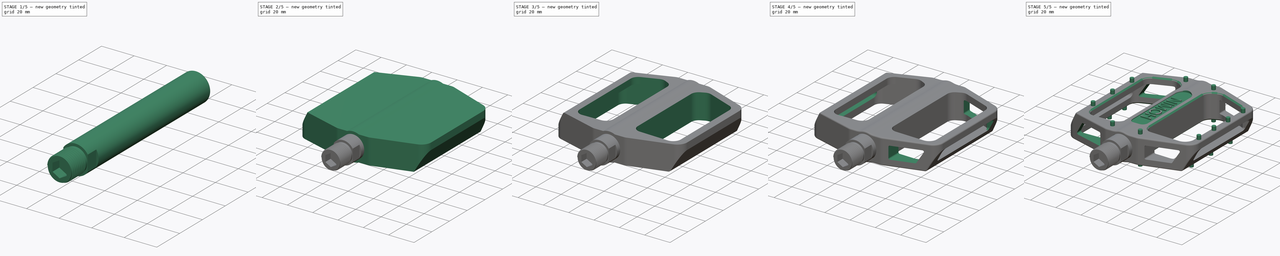
[diagram: build sequence overview — one tinted view per stage of 5, left to right]
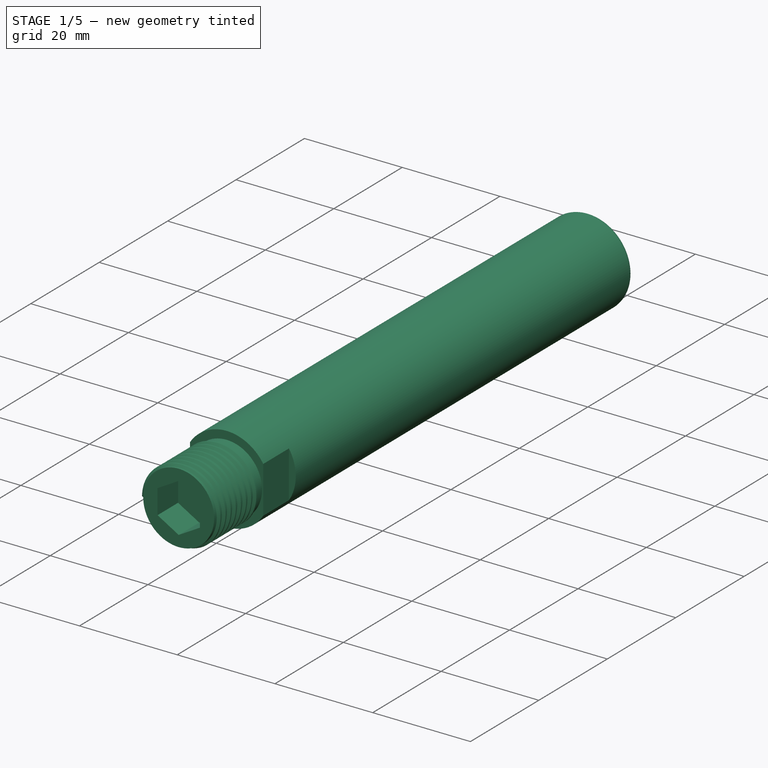
[diagram: stage 1 of 5 — iso view after this stage's code; geometry added in this stage tinted green]
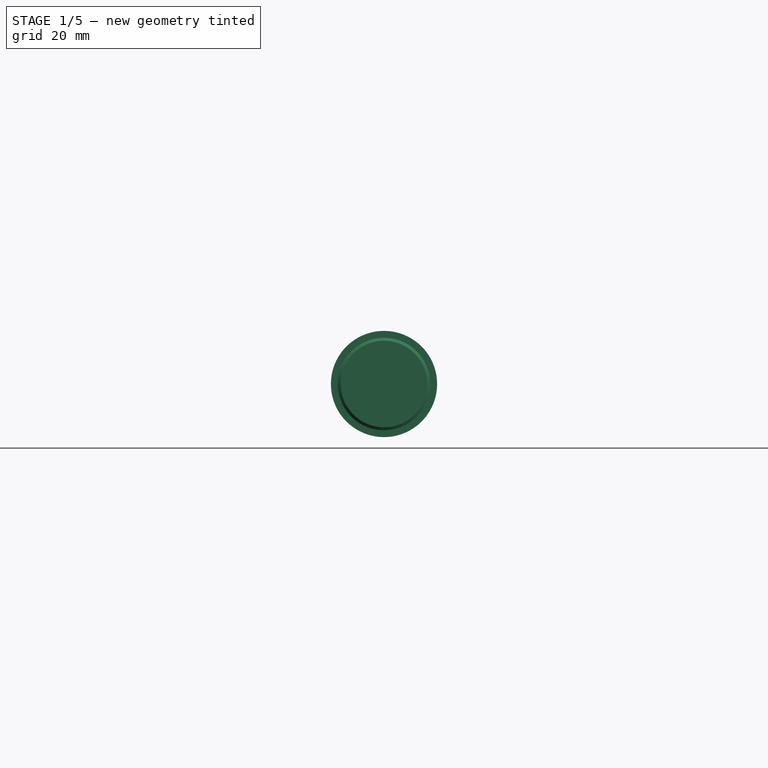
[diagram: stage 1 of 5 — front view after this stage's code; geometry added in this stage tinted green]
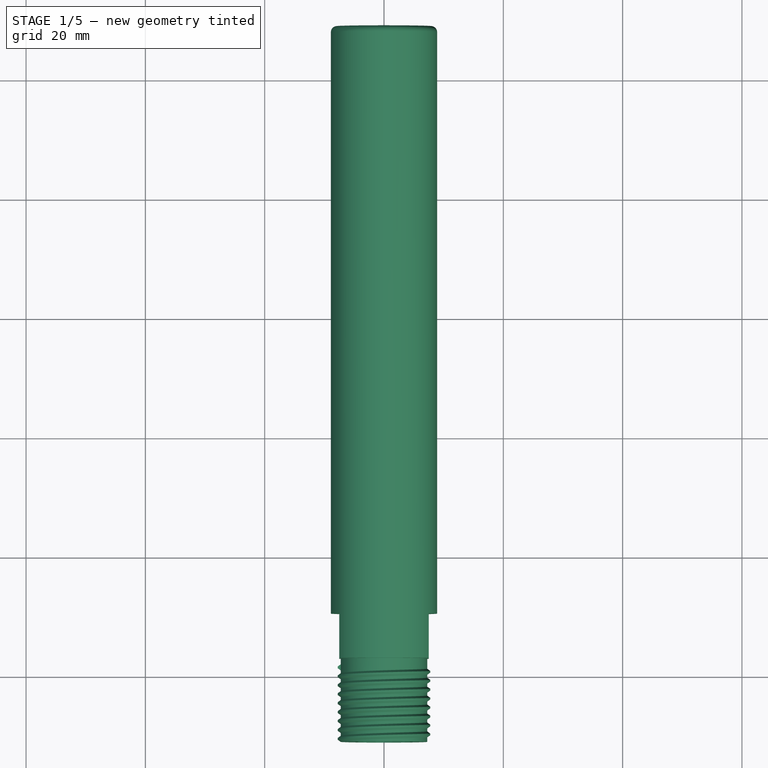
[diagram: stage 1 of 5 — top view after this stage's code; geometry added in this stage tinted green]
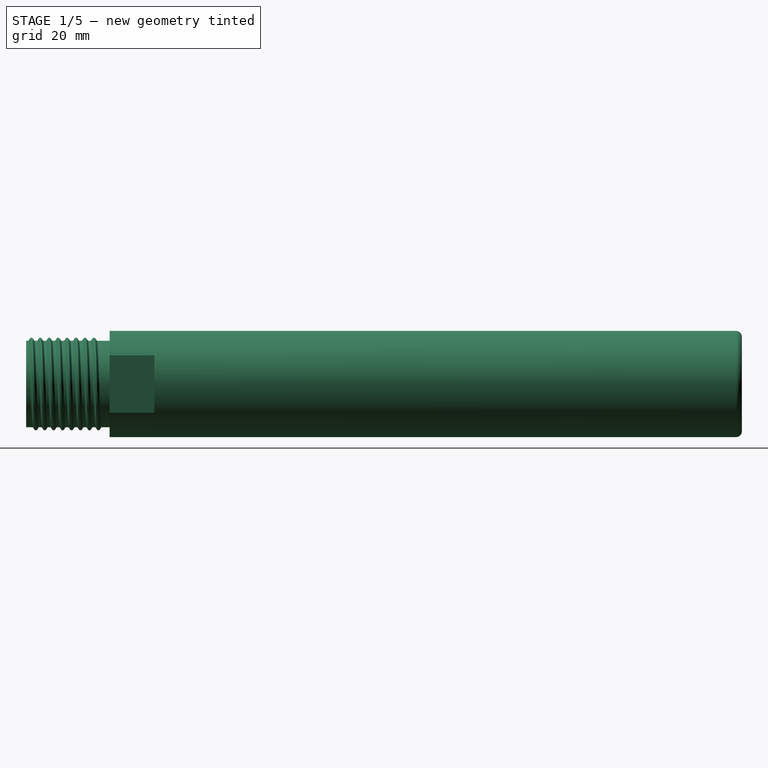
[diagram: stage 1 of 5 — right view after this stage's code; geometry added in this stage tinted green]
FCSTD DOCUMENT  (FreeCAD 1.0R39109 (Git))
Label: nimohscage
License: All rights reserved
LicenseURL: https://en.wikipedia.org/wiki/All_rights_reserved
objects: Sketcher::SketchObject×13, PartDesign::Pocket×8, PartDesign::Fillet×7, PartDesign::PolarPattern×5, PartDesign::Pad×4, PartDesign::Mirrored×2, PartDesign::Body×2, PartDesign::Chamfer×1, Part::Part2DObjectPython×1, PartDesign::Revolution×1, PartDesign::AdditiveHelix×1
note: 109 computed .brp shape members not serialized (recipe doc carries the construction recipe); baked Part::Feature solids carry a one-line shape summary decoded from their .brp

FEATURE [PartDesign::Body] Body  label="CAGE"
  AllowCompound = false
  Group = -> [Sketch,Pad,Fillet,Mirrored,Sketch001,Pocket,PolarPattern,Sketch002,Pad001,Sketch003,Pocket001,Sketch004,Pocket002,Fillet001,PolarPattern001,Fillet002,Fillet003,Fillet004,Sketch005,Pocket003,PolarPattern002,Sketch006,Pocket004,Fillet005,PolarPattern003,Chamfer,Sketch007,Pocket005,ShapeString,Pad002,Sketch008,Pad003,PolarPattern004]
  Origin = -> Origin
  Tip = -> PolarPattern004
FEATURE [Sketcher::SketchObject] Sketch009
  ArcFitTolerance = 1e-06
  AttachmentSupport = -> [XY_Plane001]
  FullyConstrained = true
  MakeInternals = false
  MapMode = 5
  sketch-geometry (7):
    g0: LineSegment StartX=0 StartY=0 StartZ=0 EndX=0 EndY=49 EndZ=0
    g1: LineSegment StartX=0 StartY=49 StartZ=0 EndX=-8.9 EndY=49 EndZ=0
    g2: LineSegment StartX=-8.9 StartY=49 StartZ=0 EndX=-8.9 EndY=-57 EndZ=0
    g3: LineSegment StartX=-8.9 StartY=-57 StartZ=0 EndX=-7.25 EndY=-57 EndZ=0
    g4: LineSegment StartX=-7.25 StartY=-57 StartZ=0 EndX=-7.25 EndY=-71 EndZ=0
    g5: LineSegment StartX=-7.25 StartY=-71 StartZ=0 EndX=0 EndY=-71 EndZ=0
    g6: LineSegment StartX=0 StartY=-71 StartZ=0 EndX=0 EndY=0 EndZ=0
  constraints (20):
    c: Coincident(g-1,g0)
    c: PointOnObject(g0,g-2)
    c: Coincident(g0,g1)
    c: Horizontal(g1)
    c: Coincident(g1,g2)
    c: Vertical(g2)
    c: Coincident(g2,g3)
    c: Horizontal(g3)
    c: Coincident(g3,g4)
    c: Vertical(g4)
    c: Coincident(g4,g5)
    c: PointOnObject(g5,g-2)
    c: Horizontal(g5)
    c: Coincident(g5,g6)
    c: Coincident(g6,g0)
    c: DistanceY(g0,g0) = 49
    c: Distance(g1,g1) = 8.9
    c: Distance(g5,g5) = 7.25
    c: DistanceY(g2,g1) = 106
    c: DistanceY(g5,g0) = 120
FEATURE [PartDesign::Revolution] Revolution
  Angle = 360
  Angle2 = 60
  Axis = (0,1,0)
  Base = (0,0,0)
  Profile = -> Sketch009
  ReferenceAxis = -> Sketch009 [V_Axis]
  Refine = true
  Suppressed = false
  Type = 0
FEATURE [Sketcher::SketchObject] Sketch010
  ArcFitTolerance = 1e-06
  AttachmentSupport = -> [XY_Plane001]
  ExternalGeometry = -> [Revolution]
  FullyConstrained = true
  MakeInternals = false
  MapMode = 5
  sketch-geometry (4):
    g0: LineSegment StartX=-8.9 StartY=-57 StartZ=0 EndX=-7.5 EndY=-57 EndZ=0
    g1: LineSegment StartX=-7.5 StartY=-57 StartZ=0 EndX=-7.5 EndY=-49.5 EndZ=0
    g2: LineSegment StartX=-7.5 StartY=-49.5 StartZ=0 EndX=-8.9 EndY=-49.5 EndZ=0
    g3: LineSegment StartX=-8.9 StartY=-49.5 StartZ=0 EndX=-8.9 EndY=-57 EndZ=0
  constraints (11):
    c: Coincident(g0,g1)
    c: Coincident(g1,g2)
    c: Coincident(g2,g3)
    c: Coincident(g3,g0)
    c: Horizontal(g0)
    c: Horizontal(g2)
    c: Vertical(g1)
    c: Vertical(g3)
    c: Coincident(g0,g-6)
    c: DistanceY(g3,g3) = 7.5
    c: Distance(g-2,g1) = 7.5
FEATURE [PartDesign::Pocket] Pocket006
  BaseFeature = -> Revolution
  Direction = (0,0,-1)
  Length = 5
  Length2 = 5
  Midplane = true
  Profile = -> Sketch010
  ReferenceAxis = -> Sketch010 [N_Axis]
  Refine = true
  Suppressed = false
  Type = 1
FEATURE [PartDesign::Mirrored] Mirrored001
  BaseFeature = -> Pocket006
  MirrorPlane = -> YZ_Plane001
  Originals = -> [Pocket006]
  Refine = true
  Suppressed = false
  TransformMode = 0
FEATURE [Sketcher::SketchObject] Sketch011
  ArcFitTolerance = 1e-06
  AttachmentSupport = -> [Mirrored001]
  FullyConstrained = true
  MakeInternals = false
  MapMode = 5
  Placement = pos=(0,-71,0) rot=(1,0,0;1.5708rad)
  sketch-geometry (7):
    g0: LineSegment StartX=0 StartY=5 StartZ=0 EndX=-4.33013 EndY=2.5 EndZ=0
    g1: LineSegment StartX=-4.33013 StartY=2.5 StartZ=0 EndX=-4.33013 EndY=-2.5 EndZ=0
    g2: LineSegment StartX=-4.33013 StartY=-2.5 StartZ=0 EndX=0 EndY=-5 EndZ=0
    g3: LineSegment StartX=0 StartY=-5 StartZ=0 EndX=4.33013 EndY=-2.5 EndZ=0
    g4: LineSegment StartX=4.33013 StartY=-2.5 StartZ=0 EndX=4.33013 EndY=2.5 EndZ=0
    g5: LineSegment StartX=4.33013 StartY=2.5 StartZ=0 EndX=0 EndY=5 EndZ=0
    g6: Circle [constr] CenterX=0 CenterY=0 CenterZ=0 NormalX=0 NormalY=0 NormalZ=1 AngleXU=0 Radius=5
  constraints (16):
    c: Coincident(g0,g1)
    c: Coincident(g1,g2)
    c: Coincident(g2,g3)
    c: Coincident(g3,g4)
    c: Coincident(g4,g5)
    c: Coincident(g5,g0)
    c: Equal(g0, g1-g5) x5
    c: PointOnObject(g0,g6)
    c: PointOnObject(g1,g6)
    c: PointOnObject(g2,g6)
    c: PointOnObject(g3,g6)
    c: PointOnObject(g4,g6)
    c: PointOnObject(g5,g6)
    c: Radius(g6) = 5
    c: Coincident(g6,g-1)
    c: PointOnObject(g0,g-2)
FEATURE [PartDesign::Pocket] Pocket007
  BaseFeature = -> Mirrored001
  Direction = (0,1,-2e-16)
  Length = 6
  Length2 = 5
  Profile = -> Sketch011
  ReferenceAxis = -> Sketch011 [N_Axis]
  Refine = true
  Suppressed = false
  Type = 0
FEATURE [Sketcher::SketchObject] Sketch012
  ArcFitTolerance = 1e-06
  AttachmentSupport = -> [XY_Plane001]
  ExternalGeometry = -> [Pocket007]
  FullyConstrained = true
  MakeInternals = false
  MapMode = 5
  sketch-geometry (5):
    g0: LineSegment StartX=-7.25 StartY=-71 StartZ=0 EndX=-7.25 EndY=-70 EndZ=0
    g1: LineSegment StartX=-7.25 StartY=-70 StartZ=0 EndX=-7.75 EndY=-70.35 EndZ=0
    g2: LineSegment StartX=-7.75 StartY=-70.35 StartZ=0 EndX=-7.75 EndY=-70.65 EndZ=0
    g3: LineSegment StartX=-7.75 StartY=-70.65 StartZ=0 EndX=-7.25 EndY=-71 EndZ=0
    g4: LineSegment [constr] StartX=-7.25 StartY=-70.5 StartZ=0 EndX=-7.75 EndY=-70.5 EndZ=0
  constraints (13):
    c: Coincident(g-4,g0)
    c: PointOnObject(g0,g-3)
    c: Coincident(g0,g1)
    c: Coincident(g1,g2)
    c: Vertical(g2)
    c: Coincident(g2,g3)
    c: Coincident(g3,g0)
    c: Symmetric(g0,g0,g4)
    c: Symmetric(g2,g2,g4)
    c: Horizontal(g4)
    c: DistanceY(g2,g2) = 0.3
    c: DistanceX(g3,g3) = 0.5
    c: DistanceY(g0,g0) = 1
FEATURE [PartDesign::AdditiveHelix] AdditiveHelix
  Angle = 0
  Axis = (0,1,0)
  Base = (0,0,0)
  BaseFeature = -> Pocket007
  Growth = 0
  HasBeenEdited = true
  Height = 12
  LeftHanded = false
  Mode = 1
  Outside = false
  Pitch = 1.5
  Profile = -> Sketch012
  ReferenceAxis = -> Sketch012 [V_Axis]
  Refine = true
  Suppressed = false
  Tolerance = 0.1
  Turns = 8
FEATURE [PartDesign::Fillet] Fillet006
  Base = -> AdditiveHelix [Edge1]
  BaseFeature = -> AdditiveHelix
  Radius = 1
  Refine = true
  SupportTransform = false
  Suppressed = false
  UseAllEdges = false
FEATURE [PartDesign::Body] Body001  label="AXLE"
  AllowCompound = false
  Group = -> [Sketch009,Revolution,Sketch010,Pocket006,Mirrored001,Sketch011,Pocket007,Sketch012,AdditiveHelix,Fillet006]
  Origin = -> Origin001
  Tip = -> Fillet006
note: 1 file-system path scrubbed to <path> (originals preserved in the JSON sidecar)
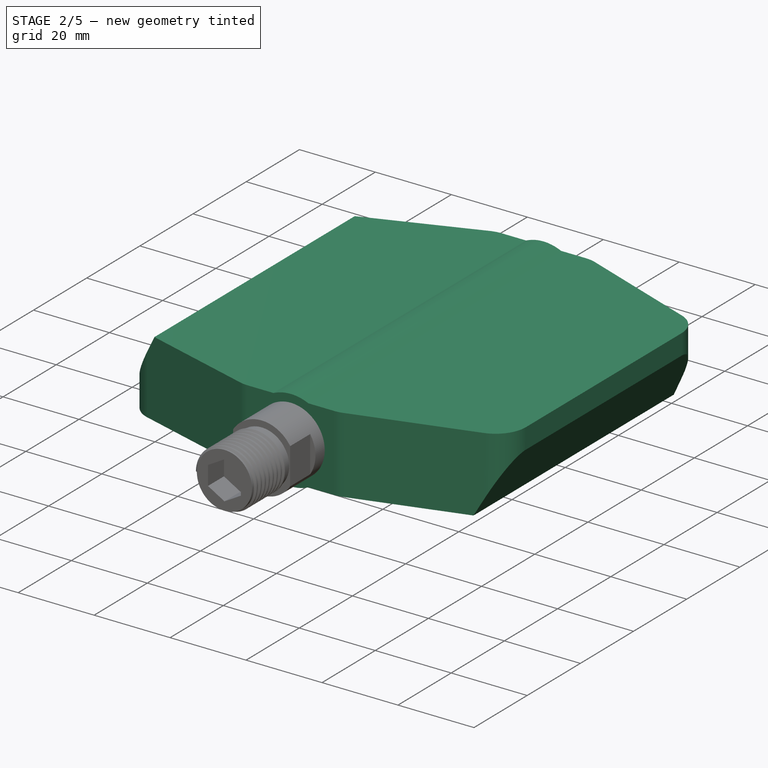
[diagram: stage 2 of 5 — iso view after this stage's code; geometry added in this stage tinted green]
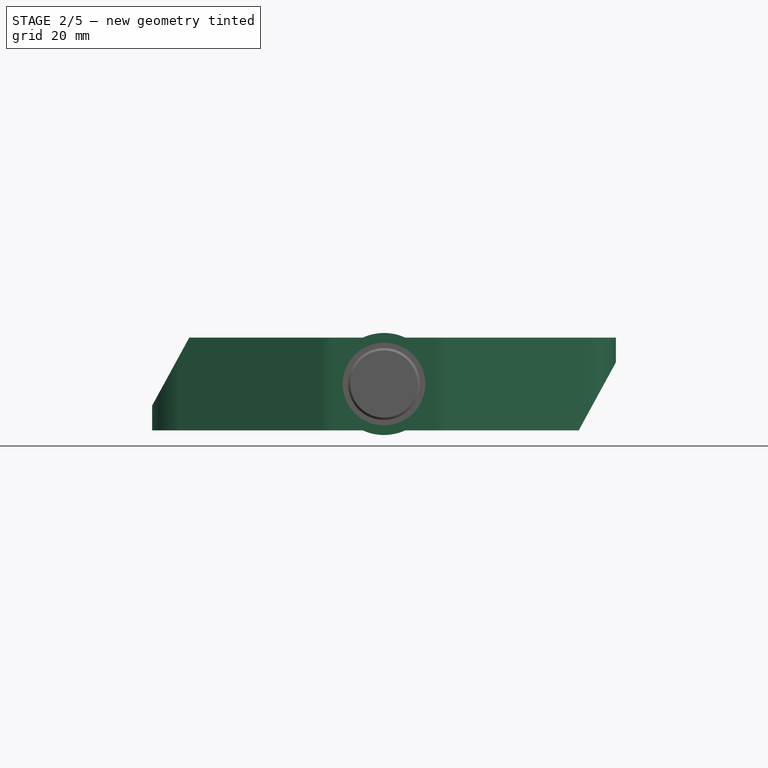
[diagram: stage 2 of 5 — front view after this stage's code; geometry added in this stage tinted green]
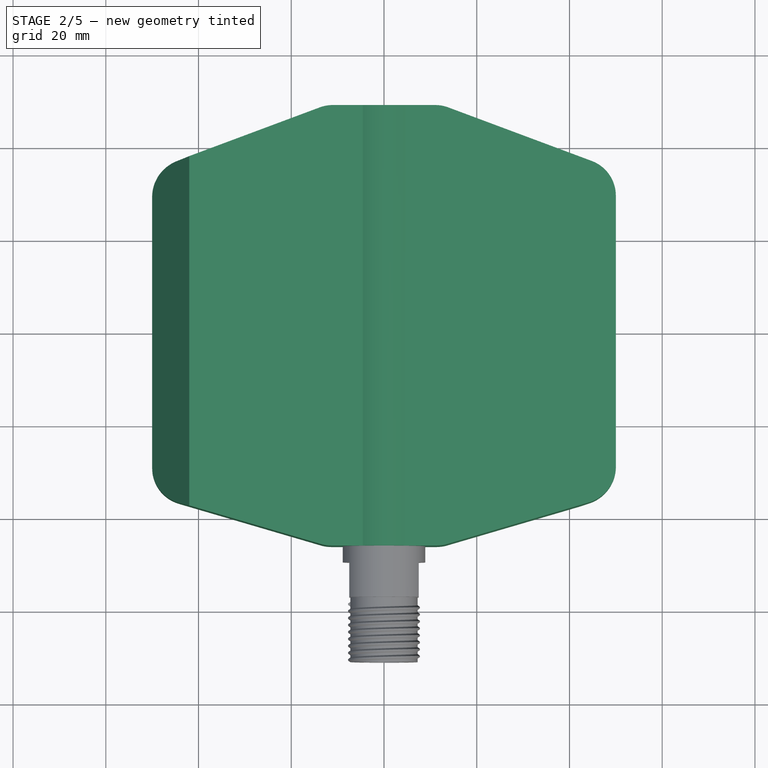
[diagram: stage 2 of 5 — top view after this stage's code; geometry added in this stage tinted green]
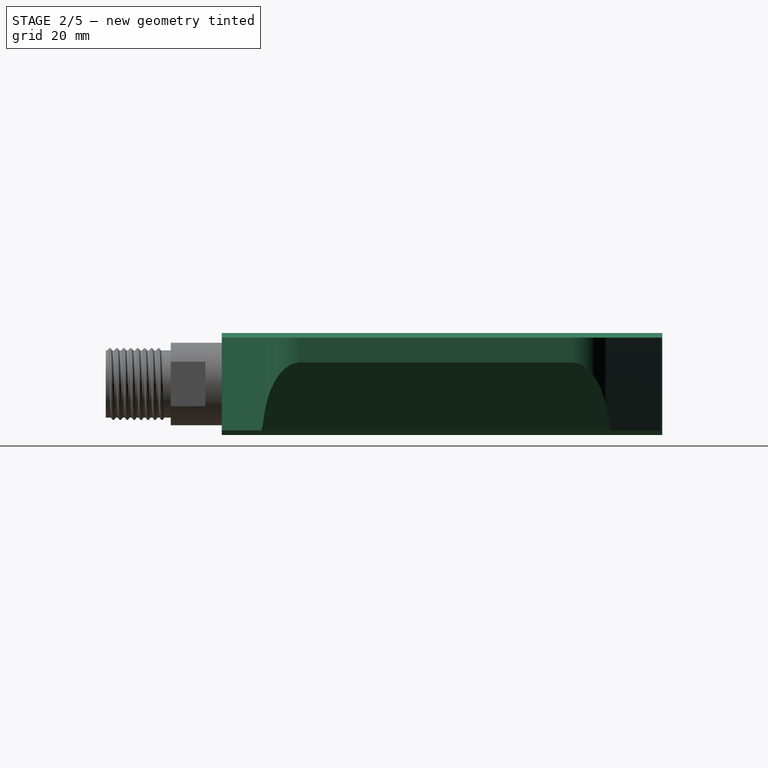
[diagram: stage 2 of 5 — right view after this stage's code; geometry added in this stage tinted green]
FEATURE [Sketcher::SketchObject] Sketch
  ArcFitTolerance = 1e-06
  AttachmentSupport = -> [XY_Plane]
  FullyConstrained = true
  MakeInternals = false
  MapMode = 5
  sketch-geometry (8):
    g0: LineSegment StartX=0 StartY=0 StartZ=0 EndX=0 EndY=49 EndZ=0
    g1: LineSegment StartX=0 StartY=49 StartZ=0 EndX=12.5 EndY=49 EndZ=0
    g2: LineSegment StartX=12.5 StartY=49 StartZ=0 EndX=50 EndY=35 EndZ=0
    g3: LineSegment StartX=50 StartY=35 StartZ=0 EndX=50 EndY=0 EndZ=0
    g4: LineSegment StartX=50 StartY=0 StartZ=0 EndX=50 EndY=-35 EndZ=0
    g5: LineSegment StartX=50 StartY=-35 StartZ=0 EndX=12.5 EndY=-46 EndZ=0
    g6: LineSegment StartX=12.5 StartY=-46 StartZ=0 EndX=0 EndY=-46 EndZ=0
    g7: LineSegment StartX=0 StartY=-46 StartZ=0 EndX=0 EndY=0 EndZ=0
  constraints (23):
    c: Coincident(g-1,g0)
    c: PointOnObject(g0,g-2)
    c: Coincident(g0,g1)
    c: Horizontal(g1)
    c: Coincident(g1,g2)
    c: Coincident(g2,g3)
    c: PointOnObject(g3,g-1)
    c: Vertical(g3)
    c: Coincident(g3,g4)
    c: Vertical(g4)
    c: Coincident(g4,g5)
    c: Coincident(g5,g6)
    c: PointOnObject(g6,g-2)
    c: Horizontal(g6)
    c: Coincident(g6,g7)
    c: Coincident(g7,g0)
    c: DistanceY(g6,g0) = 95
    c: DistanceY(g6,g0) = 46
    c: DistanceX(g0,g3) = 50
    c: DistanceY(g-1,g2) = 35
    c: DistanceX(g6,g5) = 12.5
    c: Equal(g4,g3)
    c: Equal(g1,g6)
FEATURE [PartDesign::Pad] Pad
  Direction = (0,0,1)
  Length = 20
  Length2 = 10
  Midplane = true
  Profile = -> Sketch
  ReferenceAxis = -> Sketch [N_Axis]
  Refine = true
  Suppressed = false
  Type = 0
FEATURE [PartDesign::Fillet] Fillet
  Base = -> Pad [Edge13,Edge12,Edge5,Edge2]
  BaseFeature = -> Pad
  Radius = 8
  Refine = true
  SupportTransform = false
  Suppressed = false
  UseAllEdges = false
FEATURE [PartDesign::Mirrored] Mirrored
  BaseFeature = -> Fillet
  MirrorPlane = -> YZ_Plane
  Refine = true
  Suppressed = false
  TransformMode = 1
FEATURE [Sketcher::SketchObject] Sketch001
  ArcFitTolerance = 1e-06
  AttachmentSupport = -> [Mirrored]
  ExternalGeometry = -> [Mirrored]
  FullyConstrained = true
  MakeInternals = false
  MapMode = 5
  Placement = pos=(0,-46,0) rot=(1,0,0;1.5708rad)
  sketch-geometry (3):
    g0: LineSegment StartX=42 StartY=-10 StartZ=0 EndX=50 EndY=4.65 EndZ=0
    g1: LineSegment StartX=50 StartY=4.65 StartZ=0 EndX=50 EndY=-10 EndZ=0
    g2: LineSegment StartX=50 StartY=-10 StartZ=0 EndX=42 EndY=-10 EndZ=0
  constraints (8):
    c: PointOnObject(g0,g-3)
    c: PointOnObject(g0,g-4)
    c: Coincident(g0,g1)
    c: Coincident(g1,g-5)
    c: Coincident(g1,g2)
    c: Coincident(g2,g0)
    c: DistanceX(g-1,g0) = 42
    c: Distance(g-4,g0) = 5.35
FEATURE [PartDesign::Pocket] Pocket
  BaseFeature = -> Mirrored
  Direction = (0,1,-2e-16)
  Length = 5
  Length2 = 5
  Profile = -> Sketch001
  ReferenceAxis = -> Sketch001 [N_Axis]
  Refine = true
  Suppressed = false
  Type = 1
FEATURE [PartDesign::PolarPattern] PolarPattern
  Angle = 360
  Axis = -> Y_Axis
  BaseFeature = -> Pocket
  Mode = 0
  Occurrences = 2
  Offset = 120
  Originals = -> [Pocket]
  Refine = true
  Suppressed = false
  TransformMode = 0
FEATURE [Sketcher::SketchObject] Sketch002
  ArcFitTolerance = 1e-06
  AttachmentSupport = -> [PolarPattern]
  FullyConstrained = true
  MakeInternals = false
  MapMode = 5
  Placement = pos=(0,-46,0) rot=(1,0,0;1.5708rad)
  sketch-geometry (1):
    g0: Circle CenterX=0 CenterY=0 CenterZ=0 NormalX=0 NormalY=0 NormalZ=1 AngleXU=0 Radius=11
  constraints (2):
    c: Diameter(g0) = 22
    c: Coincident(g0,g-1)
FEATURE [PartDesign::Pad] Pad001
  BaseFeature = -> PolarPattern
  Direction = (0,-1,2e-16)
  Length = 10
  Length2 = 10
  Profile = -> Sketch002
  ReferenceAxis = -> Sketch002 [N_Axis]
  Refine = true
  Suppressed = false
  Type = 3
  UpToFace = -> PolarPattern [Face16]
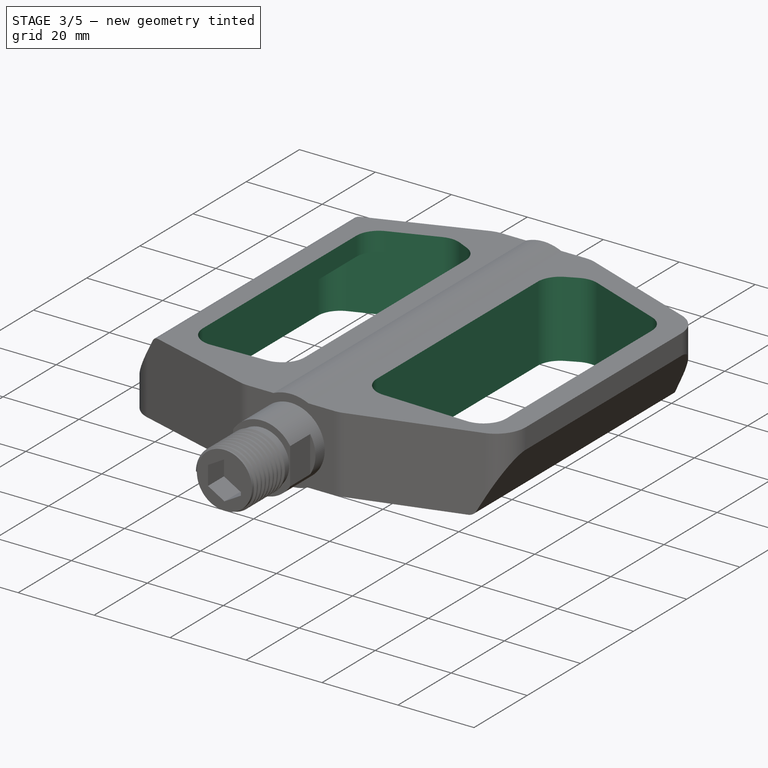
[diagram: stage 3 of 5 — iso view after this stage's code; geometry added in this stage tinted green]
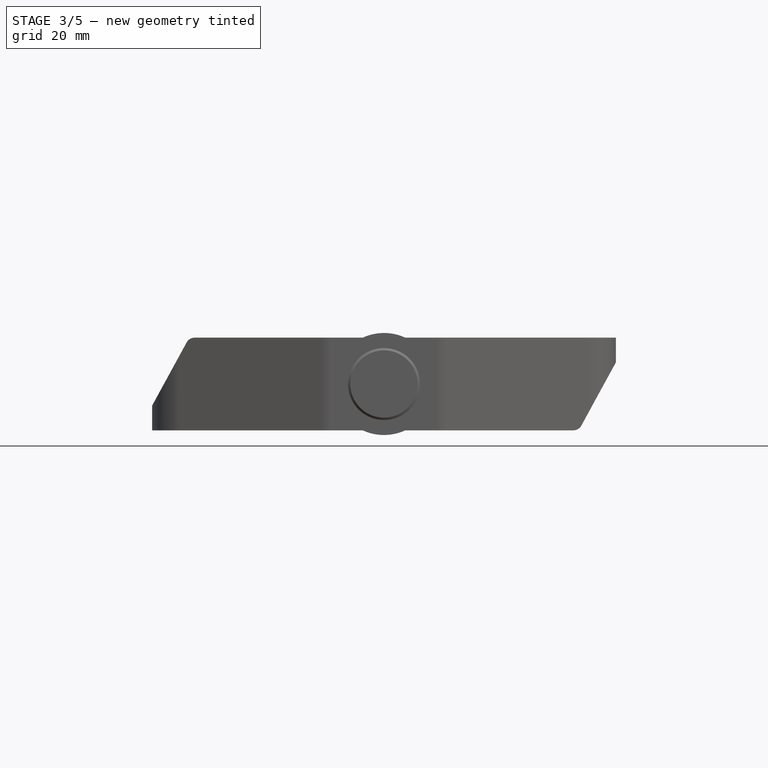
[diagram: stage 3 of 5 — front view after this stage's code; geometry added in this stage tinted green]
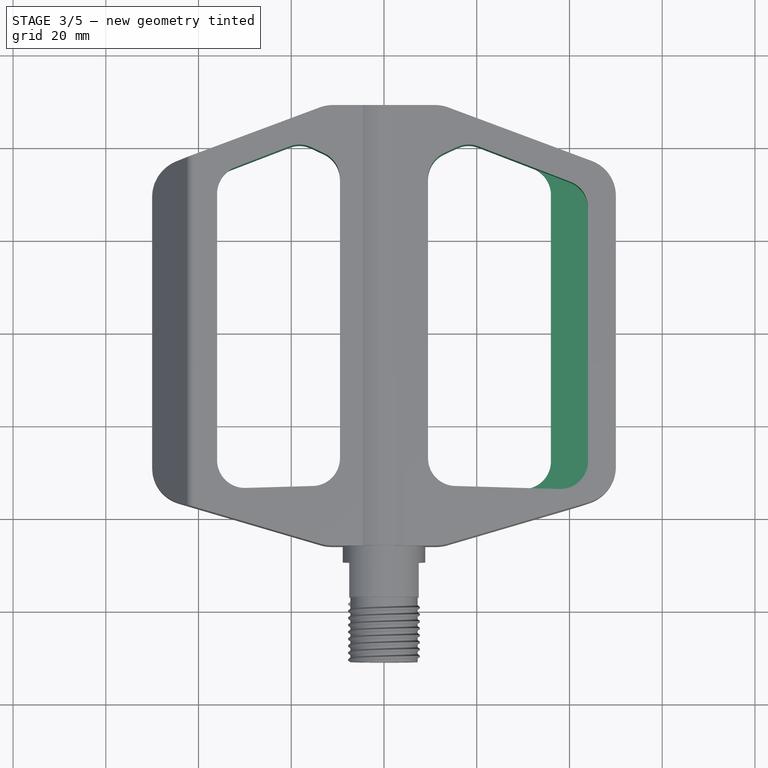
[diagram: stage 3 of 5 — top view after this stage's code; geometry added in this stage tinted green]
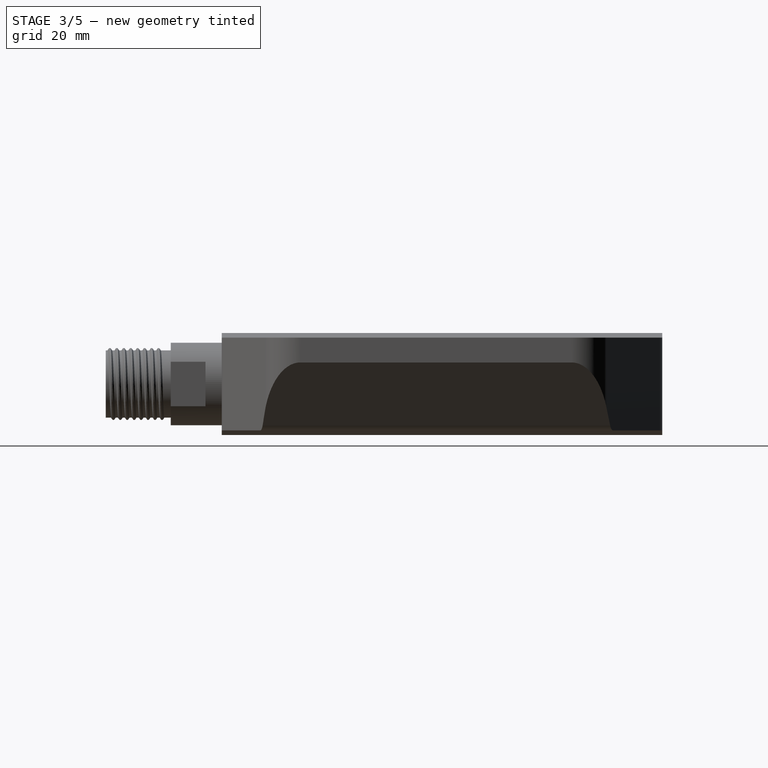
[diagram: stage 3 of 5 — right view after this stage's code; geometry added in this stage tinted green]
FEATURE [Sketcher::SketchObject] Sketch003
  ArcFitTolerance = 1e-06
  AttachmentSupport = -> [Pad001]
  FullyConstrained = true
  MakeInternals = false
  MapMode = 5
  Placement = pos=(0,0,10) rot=(0,0,1;0rad)
  sketch-geometry (7):
    g0: LineSegment StartX=9.5 StartY=0 StartZ=0 EndX=9.5 EndY=37 EndZ=0
    g1: LineSegment StartX=9.5 StartY=37 StartZ=0 EndX=18 EndY=41 EndZ=0
    g2: LineSegment StartX=18 StartY=41 StartZ=0 EndX=44 EndY=31 EndZ=0
    g3: LineSegment StartX=44 StartY=31 StartZ=0 EndX=44 EndY=0 EndZ=0
    g4: LineSegment StartX=44 StartY=0 StartZ=0 EndX=44 EndY=-34 EndZ=0
    g5: LineSegment StartX=9.5 StartY=0 StartZ=0 EndX=9.5 EndY=-33 EndZ=0
    g6: LineSegment StartX=9.5 StartY=-33 StartZ=0 EndX=44 EndY=-34 EndZ=0
  constraints (21):
    c: PointOnObject(g0,g-1)
    c: Vertical(g0)
    c: Coincident(g0,g1)
    c: Coincident(g1,g2)
    c: Coincident(g2,g3)
    c: PointOnObject(g3,g-1)
    c: Vertical(g3)
    c: Coincident(g3,g4)
    c: Coincident(g0,g5)
    c: Vertical(g5)
    c: Coincident(g5,g6)
    c: Coincident(g6,g4)
    c: DistanceY(g0,g0) = 37
    c: DistanceY(g-1,g2) = 31
    c: DistanceY(g-1,g1) = 41
    c: DistanceY(g5,g-1) = 33
    c: DistanceY(g4,g-1) = 34
    c: Distance(g-2,g0) = 9.5
    c: DistanceX(g-1,g1) = 18
    c: DistanceX(g-1,g2) = 44
    c: Vertical(g4)
FEATURE [PartDesign::Pocket] Pocket001
  BaseFeature = -> Pad001
  Direction = (0,0,-1)
  Length = 0
  Length2 = 5
  Offset = -5
  Profile = -> Sketch003
  ReferenceAxis = -> Sketch003 [N_Axis]
  Refine = true
  Suppressed = false
  Type = 3
  UpToFace = -> Pad001 [Face13]
FEATURE [Sketcher::SketchObject] Sketch004
  ArcFitTolerance = 1e-06
  AttachmentSupport = -> [Pocket001]
  ExternalGeometry = -> [Pocket001]
  FullyConstrained = true
  MakeInternals = false
  MapMode = 5
  Placement = pos=(0,0,10) rot=(0,0,1;0rad)
  sketch-geometry (6):
    g0: LineSegment StartX=36 StartY=34.0769 StartZ=0 EndX=36 EndY=-33.7681 EndZ=0
    g1: LineSegment StartX=36 StartY=34.0769 StartZ=0 EndX=18 EndY=41 EndZ=0
    g2: LineSegment StartX=18 StartY=41 StartZ=0 EndX=9.5 EndY=37 EndZ=0
    g3: LineSegment StartX=9.5 StartY=37 StartZ=0 EndX=9.5 EndY=2 EndZ=0
    g4: LineSegment StartX=9.5 StartY=2 StartZ=0 EndX=9.5 EndY=-33 EndZ=0
    g5: LineSegment StartX=9.5 StartY=-33 StartZ=0 EndX=36 EndY=-33.7681 EndZ=0
  constraints (14):
    c: PointOnObject(g0,g-3)
    c: PointOnObject(g0,g-7)
    c: Vertical(g0)
    c: Distance(g-8,g0) = 14
    c: Coincident(g0,g1)
    c: Coincident(g1,g-5)
    c: Coincident(g1,g2)
    c: Coincident(g2,g-6)
    c: Coincident(g2,g3)
    c: Symmetric(g-6,g-6,g3)
    c: Coincident(g3,g4)
    c: Coincident(g4,g-7)
    c: Coincident(g4,g5)
    c: Coincident(g5,g0)
FEATURE [PartDesign::Pocket] Pocket002
  BaseFeature = -> Pocket001
  Direction = (0,0,-1)
  Length = 5
  Length2 = 5
  Profile = -> Sketch004
  ReferenceAxis = -> Sketch004 [N_Axis]
  Refine = true
  Suppressed = false
  Type = 1
FEATURE [PartDesign::Fillet] Fillet001
  Base = -> Pocket002 [Edge82,Edge77,Edge87,Edge86,Edge85,Edge80,Edge76]
  BaseFeature = -> Pocket002
  Radius = 6
  Refine = true
  SupportTransform = false
  Suppressed = false
  UseAllEdges = false
FEATURE [PartDesign::PolarPattern] PolarPattern001
  Angle = 360
  Axis = -> Y_Axis
  BaseFeature = -> Fillet001
  Mode = 0
  Occurrences = 2
  Offset = 120
  Originals = -> [Pocket001,Pocket002,Fillet001]
  Refine = true
  Suppressed = false
  TransformMode = 0
FEATURE [PartDesign::Fillet] Fillet002
  Base = -> PolarPattern001 [Edge108,Edge18]
  BaseFeature = -> PolarPattern001
  Radius = 2
  Refine = true
  SupportTransform = false
  Suppressed = false
  UseAllEdges = false
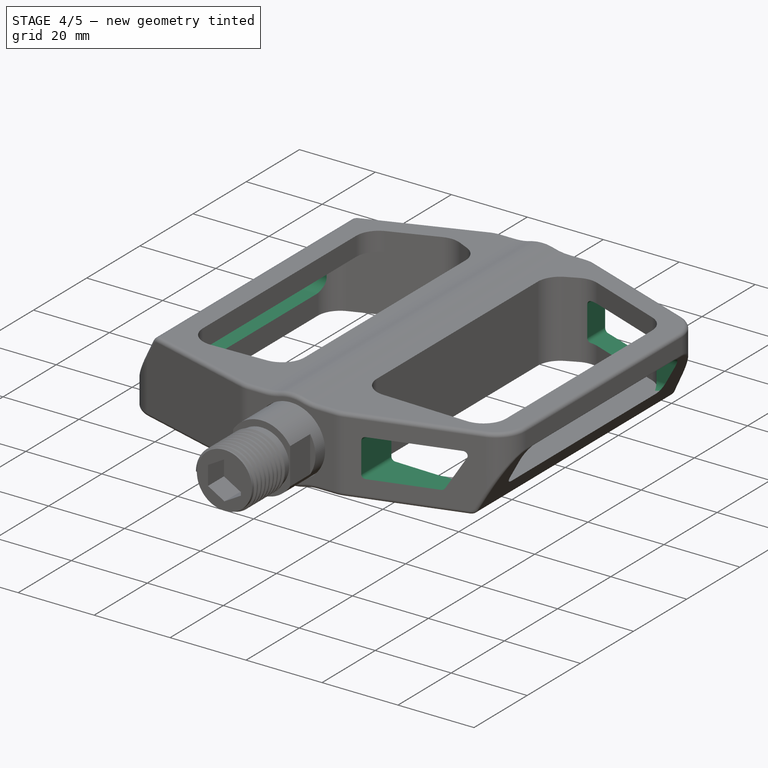
[diagram: stage 4 of 5 — iso view after this stage's code; geometry added in this stage tinted green]
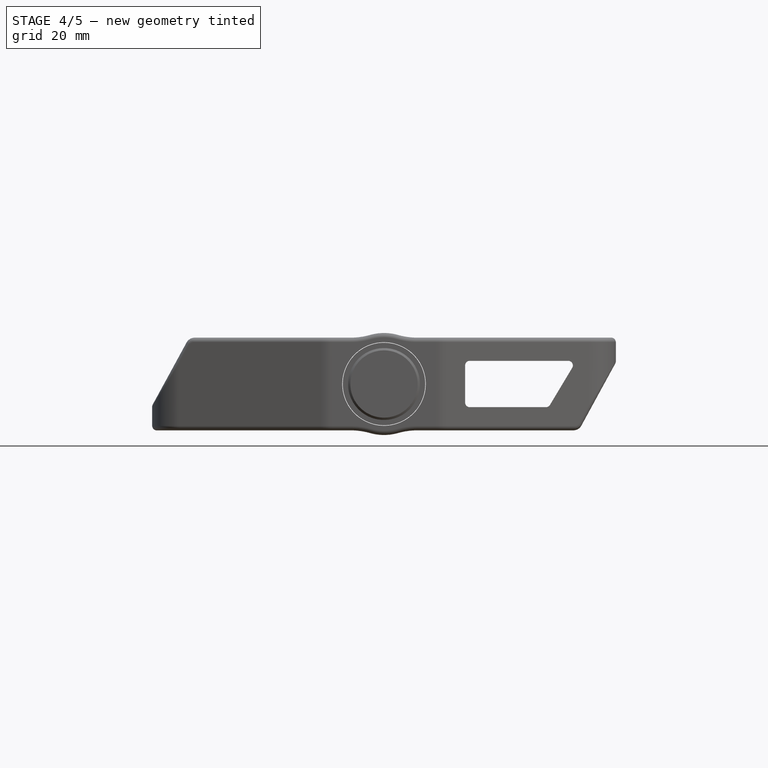
[diagram: stage 4 of 5 — front view after this stage's code; geometry added in this stage tinted green]
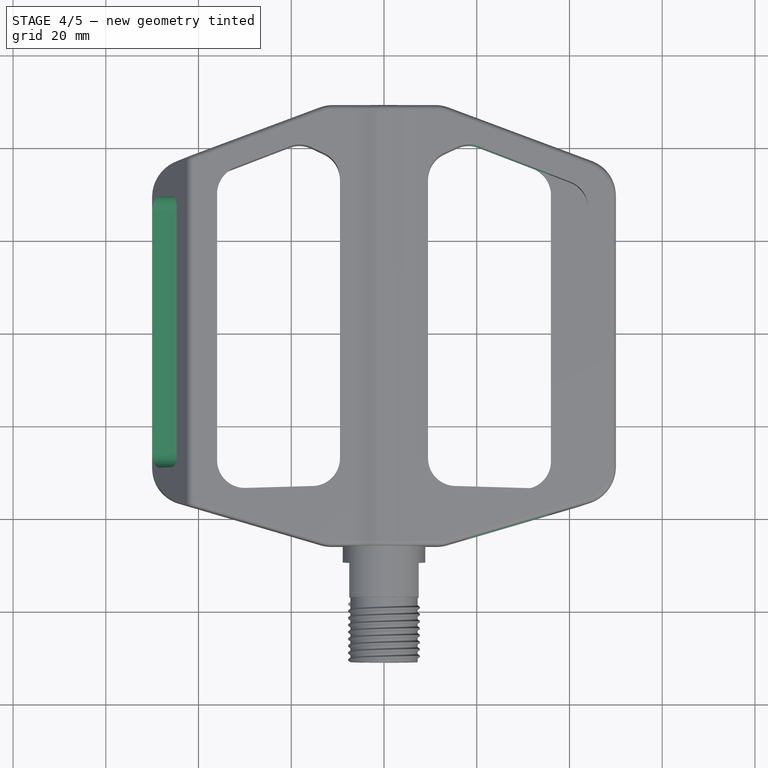
[diagram: stage 4 of 5 — top view after this stage's code; geometry added in this stage tinted green]
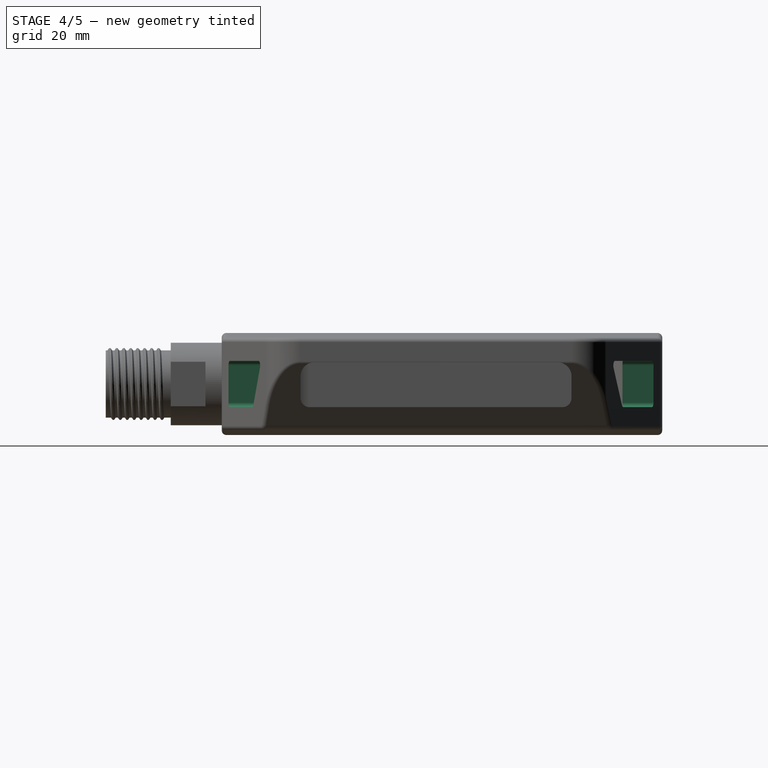
[diagram: stage 4 of 5 — right view after this stage's code; geometry added in this stage tinted green]
FEATURE [PartDesign::Fillet] Fillet003
  Base = -> Fillet002 [Edge106,Edge77,Edge40,Edge7]
  BaseFeature = -> Fillet002
  Radius = 15
  Refine = true
  SupportTransform = false
  Suppressed = false
  UseAllEdges = false
  expr: Radius = 15
FEATURE [PartDesign::Fillet] Fillet004
  Base = -> Fillet003 [Edge104,Edge84]
  BaseFeature = -> Fillet003
  Radius = 1
  Refine = true
  SupportTransform = false
  Suppressed = false
  UseAllEdges = false
FEATURE [Sketcher::SketchObject] Sketch005
  ArcFitTolerance = 1e-06
  AttachmentSupport = -> [Fillet004]
  ExternalGeometry = -> [Fillet004]
  FullyConstrained = true
  MakeInternals = false
  MapMode = 5
  Placement = pos=(-50,1.1e-14,-1.1e-14) rot=(0.57735,-0.57735,-0.57735;2.0944rad)
  sketch-geometry (13):
    g0: LineSegment [constr] StartX=-29.4473 StartY=-4.42598 StartZ=0 EndX=-29.4473 EndY=-4.90525 EndZ=0
    g1: LineSegment StartX=-26.4473 StartY=-4.66561 StartZ=0 EndX=26.0096 EndY=-4.66561 EndZ=0
    g2: LineSegment StartX=29.0096 StartY=-1.66561 StartZ=0 EndX=29.0096 EndY=3 EndZ=0
    g3: LineSegment StartX=27.0096 StartY=5 StartZ=0 EndX=-27.4473 EndY=5 EndZ=0
    g4: LineSegment StartX=-29.4473 StartY=3 StartZ=0 EndX=-29.4473 EndY=-1.66561 EndZ=0
    g5: ArcOfCircle CenterX=27.0096 CenterY=3 CenterZ=0 NormalX=0 NormalY=0 NormalZ=1 AngleXU=0 Radius=2 StartAngle=0 EndAngle=1.5708
    g6: GeomPoint [constr] X=29.0096 Y=5 Z=0
    g7: ArcOfCircle CenterX=26.0096 CenterY=-1.66561 CenterZ=0 NormalX=0 NormalY=0 NormalZ=1 AngleXU=0 Radius=3 StartAngle=4.71239 EndAngle=6.28319
    g8: GeomPoint [constr] X=29.0096 Y=-4.66561 Z=0
    g9: ArcOfCircle CenterX=-27.4473 CenterY=3 CenterZ=0 NormalX=0 NormalY=0 NormalZ=1 AngleXU=0 Radius=2 StartAngle=1.5708 EndAngle=3.14159
    g10: GeomPoint [constr] X=-29.4473 Y=5 Z=0
    g11: ArcOfCircle CenterX=-26.4473 CenterY=-1.66561 CenterZ=0 NormalX=0 NormalY=0 NormalZ=1 AngleXU=0 Radius=3 StartAngle=3.14159 EndAngle=4.71239
    g12: GeomPoint [constr] X=-29.4473 Y=-4.66561 Z=0
  constraints (29):
    c: Coincident(g0,g-3)
    c: Coincident(g0,g-3)
    c: Horizontal(g1)
    c: Horizontal(g3)
    c: Vertical(g2)
    c: Vertical(g4)
    c: Symmetric(g0,g0,g12)
    c: PointOnObject(g8,g-4)
    c: Distance(g6,g-5) = 5
    c: PointOnObject(g6,g3)
    c: PointOnObject(g6,g2)
    c: Tangent(g3,g5) = -1.5708
    c: Tangent(g2,g5) = -1.5708
    c: PointOnObject(g8,g2)
    c: PointOnObject(g8,g1)
    c: Tangent(g2,g7) = -1.5708
    c: Tangent(g1,g7) = -1.5708
    c: PointOnObject(g10,g4)
    c: PointOnObject(g10,g3)
    c: Tangent(g4,g9) = -1.5708
    c: Tangent(g3,g9) = -1.5708
    c: PointOnObject(g12,g4)
    c: PointOnObject(g12,g1)
    c: Tangent(g4,g11) = -1.5708
    c: Tangent(g1,g11) = -1.5708
    c: Radius(g9) = 2
    c: Radius(g11) = 3
    c: Equal(g9,g5)
    c: Equal(g7,g11)
FEATURE [PartDesign::Pocket] Pocket003
  BaseFeature = -> Fillet004
  Direction = (1,0,0)
  Length = 0
  Length2 = 5
  Profile = -> Sketch005
  ReferenceAxis = -> Sketch005 [N_Axis]
  Refine = true
  Suppressed = false
  Type = 3
  UpToFace = -> Fillet004 [Face104]
FEATURE [PartDesign::PolarPattern] PolarPattern002
  Angle = 360
  Axis = -> Y_Axis
  BaseFeature = -> Pocket003
  Mode = 0
  Occurrences = 2
  Offset = 120
  Originals = -> [Pocket003]
  Refine = true
  Suppressed = false
  TransformMode = 0
FEATURE [Sketcher::SketchObject] Sketch006
  ArcFitTolerance = 1e-06
  AttachmentSupport = -> [PolarPattern002]
  ExternalGeometry = -> [PolarPattern002]
  FullyConstrained = true
  MakeInternals = false
  MapMode = 5
  Placement = pos=(0,-46,0) rot=(1,0,0;1.5708rad)
  sketch-geometry (5):
    g0: Circle CenterX=0 CenterY=0 CenterZ=0 NormalX=0 NormalY=0 NormalZ=1 AngleXU=0 Radius=9
    g1: LineSegment StartX=17.5 StartY=-5 StartZ=0 EndX=17.5 EndY=5 EndZ=0
    g2: LineSegment StartX=17.5 StartY=5 StartZ=0 EndX=41.5 EndY=5 EndZ=0
    g3: LineSegment StartX=41.5 StartY=5 StartZ=0 EndX=35.5 EndY=-5 EndZ=0
    g4: LineSegment StartX=35.5 StartY=-5 StartZ=0 EndX=17.5 EndY=-5 EndZ=0
  constraints (14):
    c: Diameter(g0) = 18
    c: Coincident(g0,g-1)
    c: Vertical(g1)
    c: Coincident(g1,g2)
    c: Horizontal(g2)
    c: Coincident(g2,g3)
    c: Coincident(g3,g4)
    c: Coincident(g4,g1)
    c: Horizontal(g4)
    c: DistanceX(g-1,g1) = 17.5
    c: DistanceX(g4,g4) = 18
    c: DistanceX(g2,g2) = 24
    c: DistanceY(g2,g-3) = 5
    c: Distance(g-4,g4) = 5
FEATURE [PartDesign::Pocket] Pocket004
  BaseFeature = -> PolarPattern002
  Direction = (0,1,-2e-16)
  Length = 5
  Length2 = 5
  Profile = -> Sketch006
  ReferenceAxis = -> Sketch006 [N_Axis]
  Refine = true
  Suppressed = false
  Type = 1
FEATURE [PartDesign::Fillet] Fillet005
  Base = -> Pocket004 [Edge131,Edge132,Edge216,Edge133,Edge157,Edge158,Edge210,Edge161]
  BaseFeature = -> Pocket004
  Radius = 1
  Refine = true
  SupportTransform = false
  Suppressed = false
  UseAllEdges = false
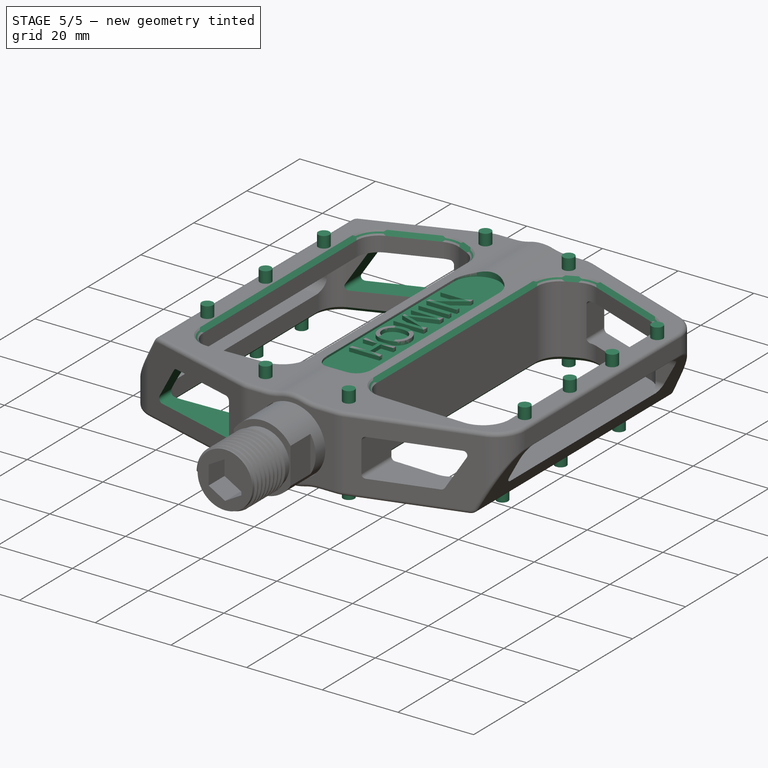
[diagram: stage 5 of 5 — iso view after this stage's code; geometry added in this stage tinted green]
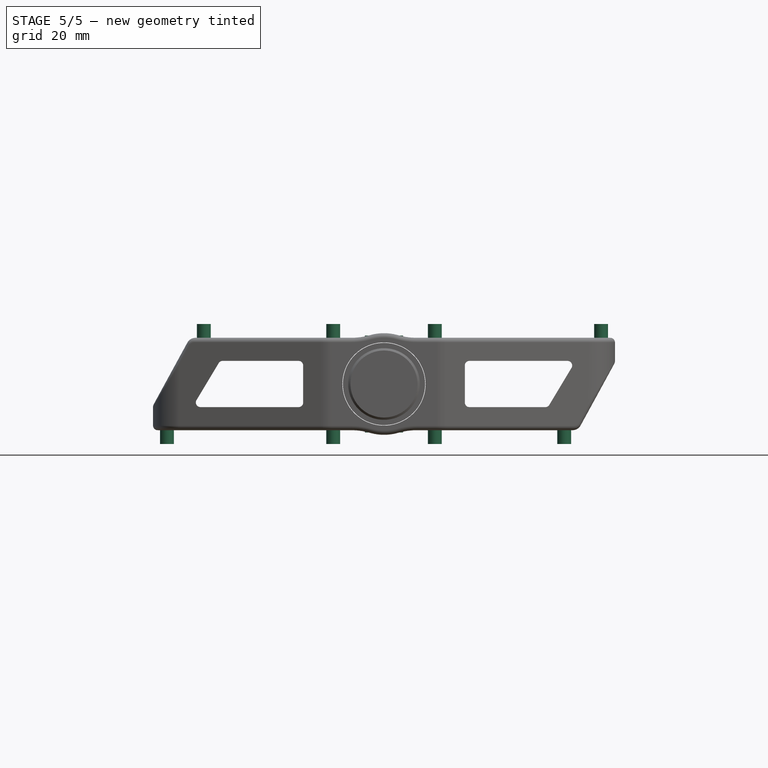
[diagram: stage 5 of 5 — front view after this stage's code; geometry added in this stage tinted green]
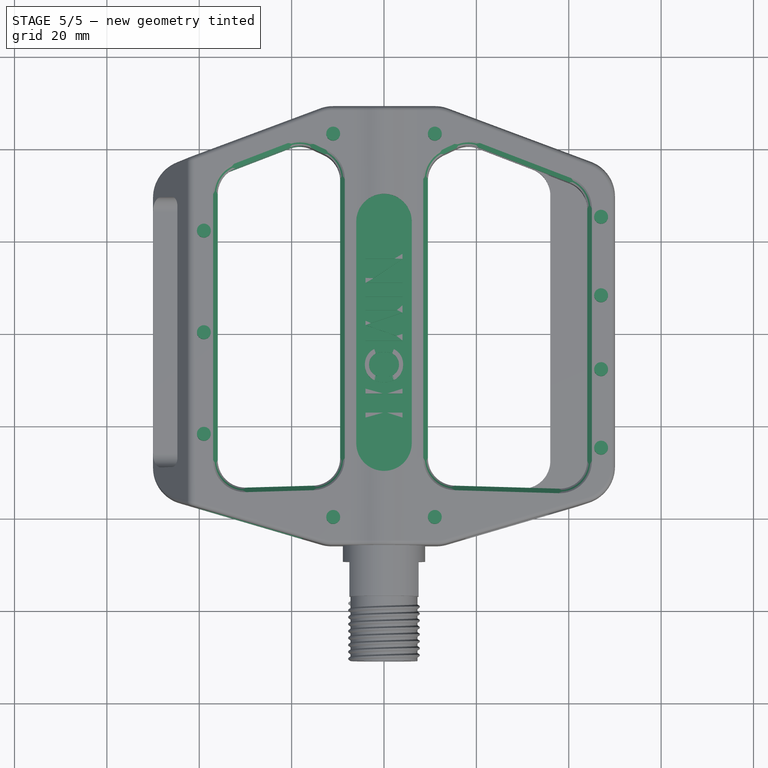
[diagram: stage 5 of 5 — top view after this stage's code; geometry added in this stage tinted green]
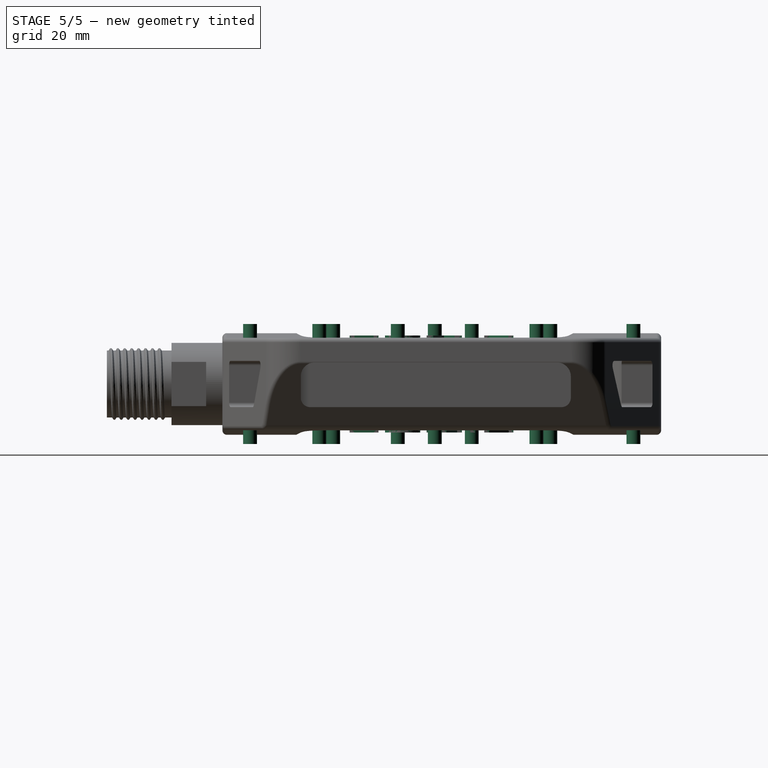
[diagram: stage 5 of 5 — right view after this stage's code; geometry added in this stage tinted green]
FEATURE [PartDesign::PolarPattern] PolarPattern003
  Angle = 360
  Axis = -> Y_Axis
  BaseFeature = -> Fillet005
  Mode = 0
  Occurrences = 2
  Offset = 120
  Originals = -> [Pocket004,Fillet005]
  Refine = true
  Suppressed = false
  TransformMode = 0
FEATURE [PartDesign::Chamfer] Chamfer
  Angle = 45
  Base = -> PolarPattern003 [Edge71,Edge302,Edge290,Edge45]
  BaseFeature = -> PolarPattern003
  ChamferType = 0
  FlipDirection = false
  Refine = true
  Size = 1
  Size2 = 1
  SupportTransform = false
  Suppressed = false
  UseAllEdges = false
FEATURE [Sketcher::SketchObject] Sketch007
  ArcFitTolerance = 1e-06
  AttachmentSupport = -> [Chamfer]
  FullyConstrained = true
  MakeInternals = false
  MapMode = 5
  Placement = pos=(0,0,10) rot=(0,0,1;0rad)
  sketch-geometry (4):
    g0: ArcOfCircle CenterX=0 CenterY=24 CenterZ=0 NormalX=0 NormalY=0 NormalZ=1 AngleXU=0 Radius=6 StartAngle=-7.1e-15 EndAngle=3.14159
    g1: ArcOfCircle CenterX=0 CenterY=-24 CenterZ=0 NormalX=0 NormalY=0 NormalZ=1 AngleXU=0 Radius=6 StartAngle=3.14159 EndAngle=6.28319
    g2: LineSegment StartX=6 StartY=24 StartZ=0 EndX=6 EndY=-24 EndZ=0
    g3: LineSegment StartX=-6 StartY=24 StartZ=0 EndX=-6 EndY=-24 EndZ=0
  constraints (9):
    c: Tangent(g0,g2) = 1.5708
    c: Tangent(g0,g3) = -1.5708
    c: Tangent(g1,g2) = 1.5708
    c: Tangent(g1,g3) = -1.5708
    c: Equal(g0,g1)
    c: Distance(g0,g1) = 48
    c: Radius(g0) = 6
    c: PointOnObject(g0,g-2)
    c: Symmetric(g0,g1,g-1)
FEATURE [PartDesign::Pocket] Pocket005
  BaseFeature = -> Chamfer
  Direction = (0,0,-1)
  Length = 0.5
  Length2 = 5
  Profile = -> Sketch007
  ReferenceAxis = -> Sketch007 [N_Axis]
  Refine = true
  Suppressed = false
  Type = 4
FEATURE [Part::Part2DObjectPython] ShapeString  # Draft 2D object (typed FeaturePython)
  AttachmentOffset = pos=(-4,17,0) rot=(0,0,1;-1.5708rad)
  AttachmentSupport = -> [Pocket005]
  FontFile = <path>
  Fuse = false
  Justification = 6
  JustificationReference = 0
  KeepLeftMargin = false
  MakeFace = true
  MapMode = 5
  ObliqueAngle = 0
  Placement = pos=(-4,17,9.5) rot=(0,0,1;4.71239rad)
  ScaleToSize = true
  Size = 8
  String = NIMOH
  Tracking = 0
  expr: .AttachmentOffset.Base.x = -4
FEATURE [PartDesign::Pad] Pad002
  BaseFeature = -> Pocket005
  Direction = (0,0,1)
  Length = 1
  Length2 = 10
  Profile = -> ShapeString
  ReferenceAxis = -> ShapeString [N_Axis]
  Refine = true
  Suppressed = false
  Type = 0
FEATURE [Sketcher::SketchObject] Sketch008
  ArcFitTolerance = 1e-06
  AttachmentSupport = -> [Pad002]
  FullyConstrained = true
  MakeInternals = false
  MapMode = 5
  Placement = pos=(0,0,10) rot=(0,0,1;0rad)
  sketch-geometry (11):
    g0: Circle CenterX=-11 CenterY=43 CenterZ=0 NormalX=0 NormalY=0 NormalZ=1 AngleXU=0 Radius=1.5
    g1: Circle CenterX=11 CenterY=43 CenterZ=0 NormalX=0 NormalY=0 NormalZ=1 AngleXU=0 Radius=1.5
    g2: Circle CenterX=47 CenterY=25 CenterZ=0 NormalX=0 NormalY=0 NormalZ=1 AngleXU=0 Radius=1.5
    g3: Circle CenterX=47 CenterY=8 CenterZ=0 NormalX=0 NormalY=0 NormalZ=1 AngleXU=0 Radius=1.5
    g4: Circle CenterX=47 CenterY=-8 CenterZ=0 NormalX=0 NormalY=0 NormalZ=1 AngleXU=0 Radius=1.5
    g5: Circle CenterX=47 CenterY=-25 CenterZ=0 NormalX=0 NormalY=0 NormalZ=1 AngleXU=0 Radius=1.5
    g6: Circle CenterX=11 CenterY=-40 CenterZ=0 NormalX=0 NormalY=0 NormalZ=1 AngleXU=0 Radius=1.5
    g7: Circle CenterX=-11 CenterY=-40 CenterZ=0 NormalX=0 NormalY=0 NormalZ=1 AngleXU=0 Radius=1.5
    g8: Circle CenterX=-39 CenterY=-22 CenterZ=0 NormalX=0 NormalY=0 NormalZ=1 AngleXU=0 Radius=1.5
    g9: Circle CenterX=-39 CenterY=0 CenterZ=0 NormalX=0 NormalY=0 NormalZ=1 AngleXU=0 Radius=1.5
    g10: Circle CenterX=-39 CenterY=22 CenterZ=0 NormalX=0 NormalY=0 NormalZ=1 AngleXU=0 Radius=1.5
  constraints (28):
    c: PointOnObject(g9,g-1)
    c: DistanceX(g0,g-1) = 11
    c: DistanceY(g-1,g0) = 43
    c: DistanceY(g7,g-1) = 40
    c: DistanceY(g4,g-1) = 8
    c: DistanceY(g5,g-1) = 25
    c: DistanceX(g8,g-1) = 39
    c: DistanceX(g-1,g5) = 47
    c: DistanceY(g8,g-1) = 22
    c: Diameter(g1) = 3
    c: Equal(g0,g1)
    c: Equal(g10,g9)
    c: Equal(g1,g10)
    c: Equal(g8,g9)
    c: Equal(g8,g7)
    c: Equal(g6,g8)
    c: Equal(g5,g1)
    c: Equal(g2,g3)
    c: Equal(g3,g4)
    c: Equal(g4,g1)
    c: Symmetric(g0,g1,g-2)
    c: Symmetric(g7,g6,g-2)
    c: Symmetric(g4,g3,g-1)
    c: Symmetric(g5,g2,g-1)
    c: Symmetric(g8,g10,g-1)
    c: Vertical(g1,g6)
    c: Vertical(g3,g2)
    c: Vertical(g9,g10)
FEATURE [PartDesign::Pad] Pad003
  BaseFeature = -> Pad002
  Direction = (0,0,1)
  Length = 3
  Length2 = 10
  Profile = -> Sketch008
  ReferenceAxis = -> Sketch008 [N_Axis]
  Refine = true
  Suppressed = false
  Type = 0
FEATURE [PartDesign::PolarPattern] PolarPattern004
  Angle = 360
  Axis = -> Y_Axis
  BaseFeature = -> Pad003
  Mode = 0
  Occurrences = 2
  Offset = 120
  Originals = -> [Pocket005,Pad002,Pad003]
  Refine = true
  Suppressed = false
  TransformMode = 0
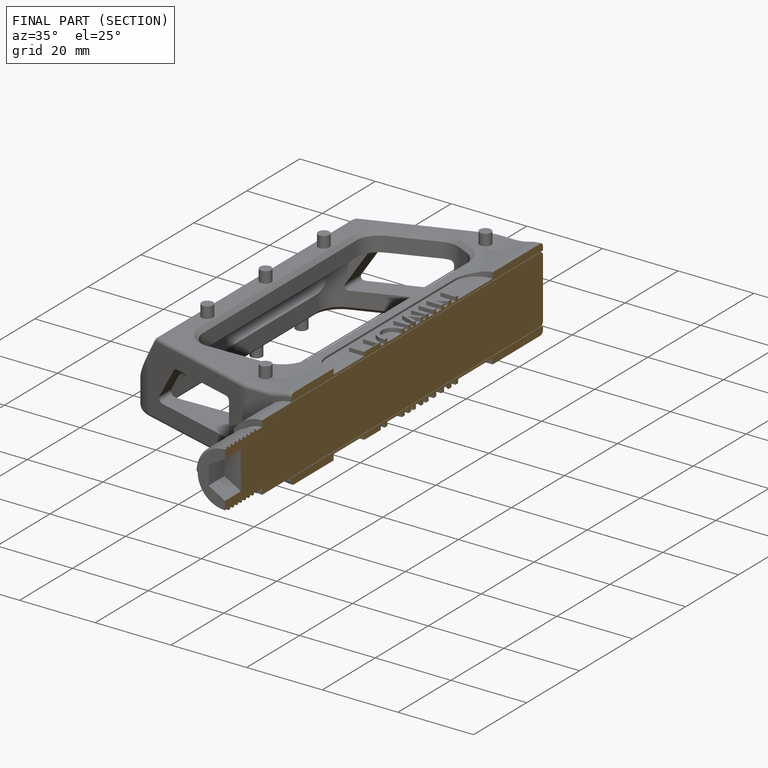
[diagram: finished part — half-section view (interior)]
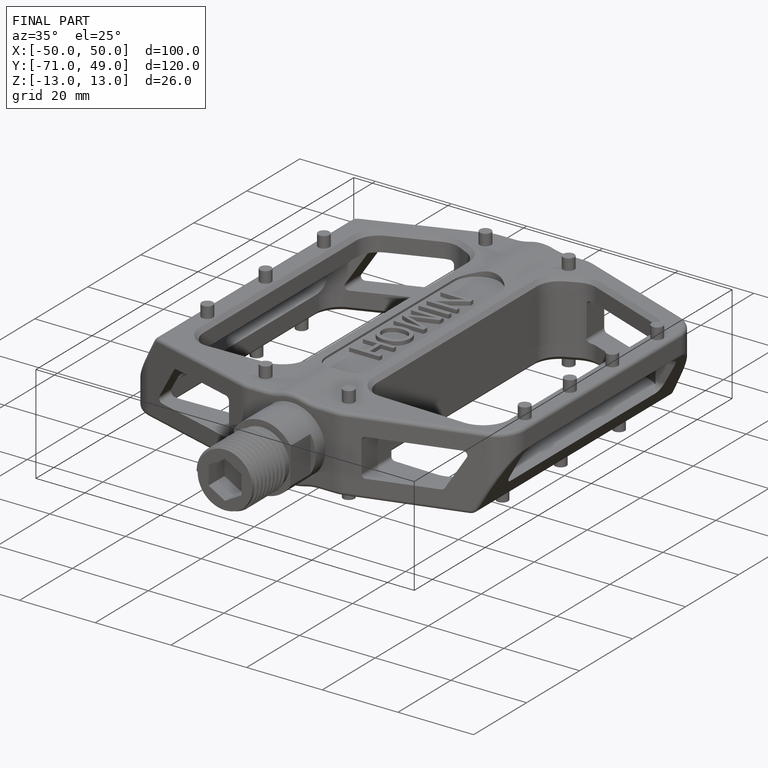
[diagram: finished part — iso view with bounding-box wireframe]
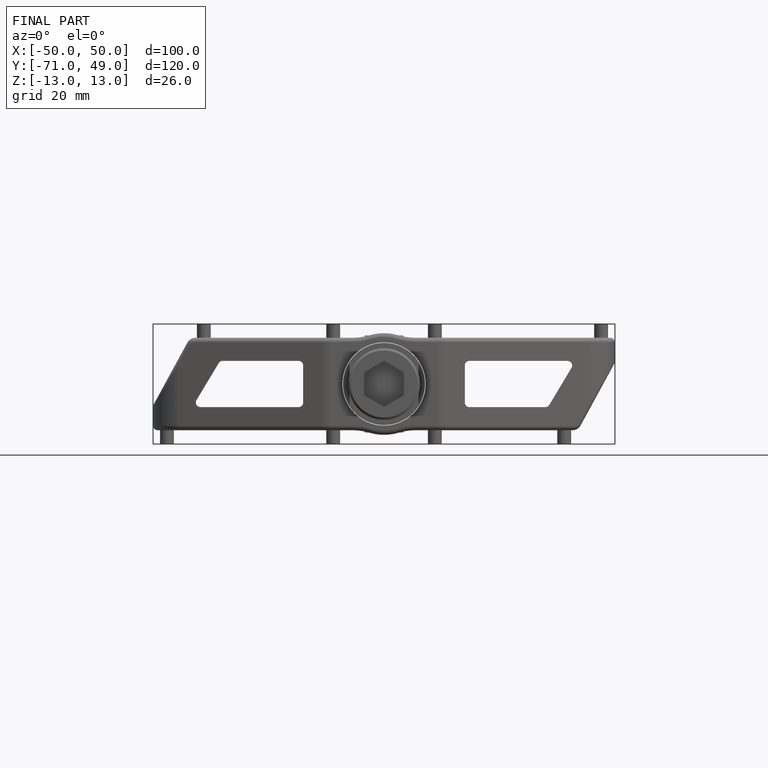
[diagram: finished part — front view with bounding-box wireframe]
